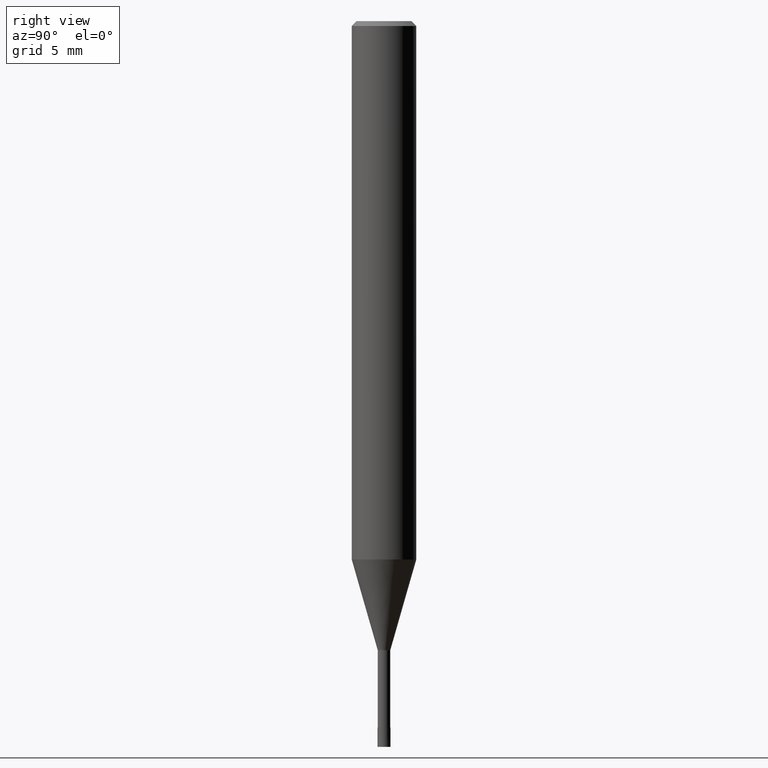
[diagram: clean part render]
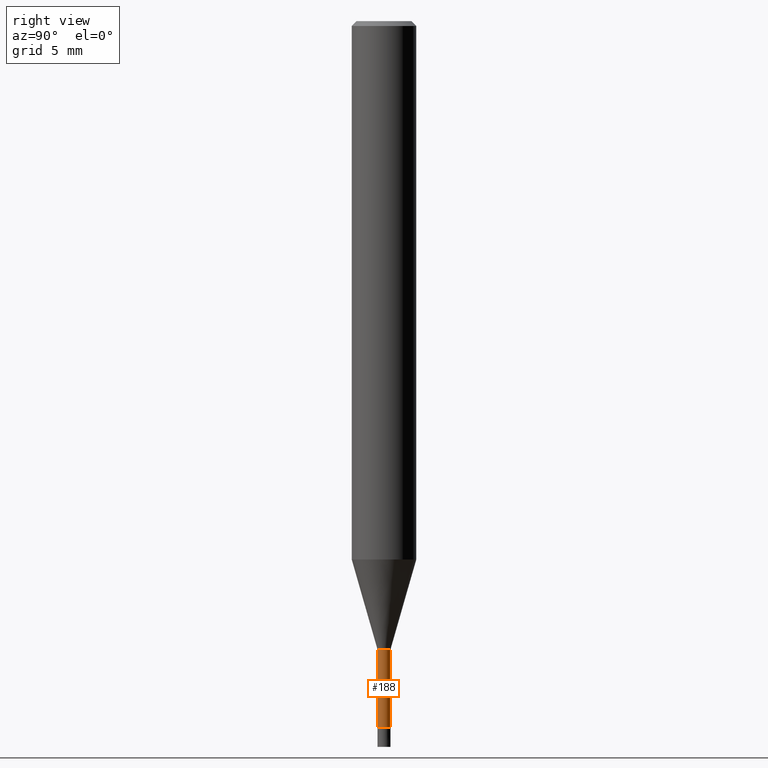
[diagram: same view with one face highlighted and labeled with its STEP entity id]
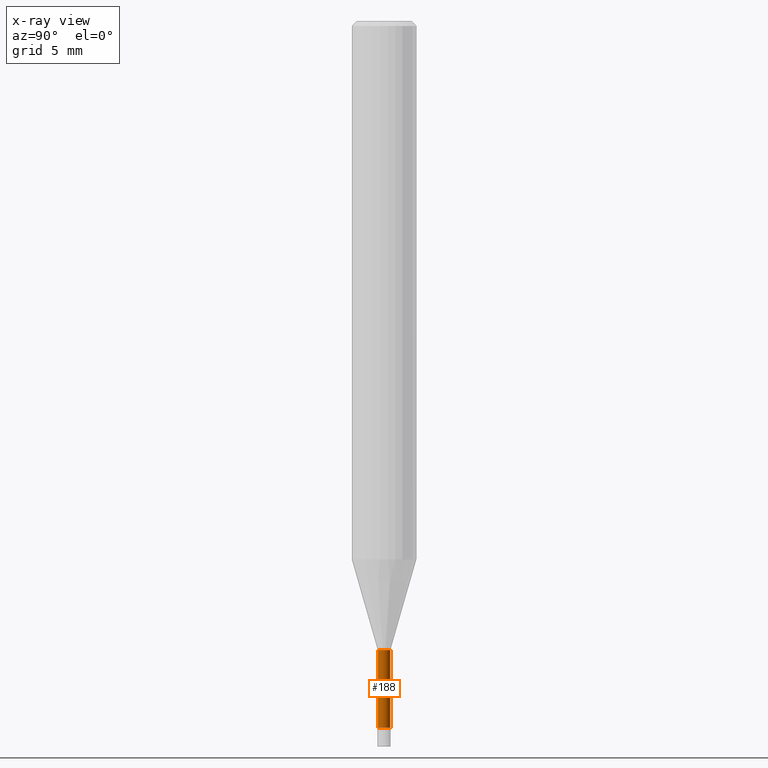
[diagram: x-ray of the same camera — body ghosted, the highlighted face saturated]
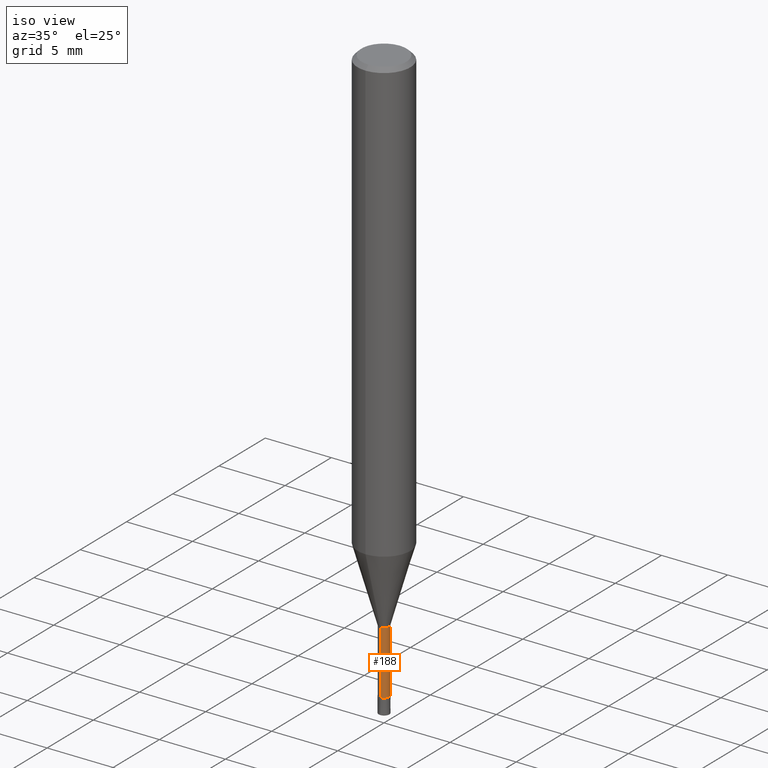
[diagram: same view with one face highlighted and labeled with its STEP entity id]
A machine part, right view. The second image highlights one B-rep face of the part: STEP entity #188.
The next image is the same camera in x-ray: the body ghosted, the highlighted face saturated — about 0% of this face is hidden behind the body in this view.
A second angle (iso view) of the same face is appended — the face is thin or edge-on in the first view.
In plain terms, the highlighted cylindrical surface (edge-blend (fillet) strip) has radius 0.39 mm, axis along (-0, -0, 1).
Its self-contained STEP definition (entity closure, byte-faithful):
#102=VERTEX_POINT('',#240);
#106=VERTEX_POINT('',#245);
#130=EDGE_CURVE('',#138,#106,#271,.T.);
#138=VERTEX_POINT('',#280);
#154=EDGE_CURVE('',#168,#102,#298,.T.);
#168=VERTEX_POINT('',#313);
#188=ADVANCED_FACE('',(#337),#338,.T.);
#196=EDGE_CURVE('',#102,#138,#349,.T.);
#208=EDGE_CURVE('',#168,#106,#361,.T.);
#240=CARTESIAN_POINT('',(0.0,0.38995,-43.8));
#245=CARTESIAN_POINT('',(4.77535247673036E-017,-0.38995,-39.0));
#271=LINE('',#429,#430);
#280=CARTESIAN_POINT('',(4.77535247673036E-017,-0.38995,-43.8));
#298=LINE('',#462,#463);
#313=CARTESIAN_POINT('',(0.0,0.38995,-39.0));
#337=FACE_OUTER_BOUND('',#511,.T.);
#338=CYLINDRICAL_SURFACE('',#512,0.38995);
#349=CIRCLE('',#524,0.38995);
#361=CIRCLE('',#540,0.38995);
#429=CARTESIAN_POINT('',(4.77535247673036E-017,-0.38995,-41.4));
#430=VECTOR('',#595,1.0);
#462=CARTESIAN_POINT('',(-4.77535247673036E-017,0.38995,-41.4));
#463=VECTOR('',#631,1.0);
#511=EDGE_LOOP('',(#675,#676,#677,#678));
#512=AXIS2_PLACEMENT_3D('',#679,#680,#681);
#524=AXIS2_PLACEMENT_3D('',#704,#705,#706);
#540=AXIS2_PLACEMENT_3D('',#711,#712,#713);
#595=DIRECTION('',(-0.0,-0.0,1.0));
#631=DIRECTION('',(0.0,0.0,-1.0));
#675=ORIENTED_EDGE('',*,*,#154,.F.);
#676=ORIENTED_EDGE('',*,*,#208,.T.);
#677=ORIENTED_EDGE('',*,*,#130,.F.);
#678=ORIENTED_EDGE('',*,*,#196,.F.);
#679=CARTESIAN_POINT('',(0.0,0.0,-41.4));
#680=DIRECTION('',(-0.0,-0.0,1.0));
#681=DIRECTION('',(0.0,1.0,0.0));
#704=CARTESIAN_POINT('',(0.0,0.0,-43.8));
#705=DIRECTION('',(0.0,0.0,-1.0));
#706=DIRECTION('',(0.0,1.0,0.0));
#711=CARTESIAN_POINT('',(0.0,0.0,-39.0));
#712=DIRECTION('',(0.0,0.0,-1.0));
#713=DIRECTION('',(0.0,1.0,0.0));